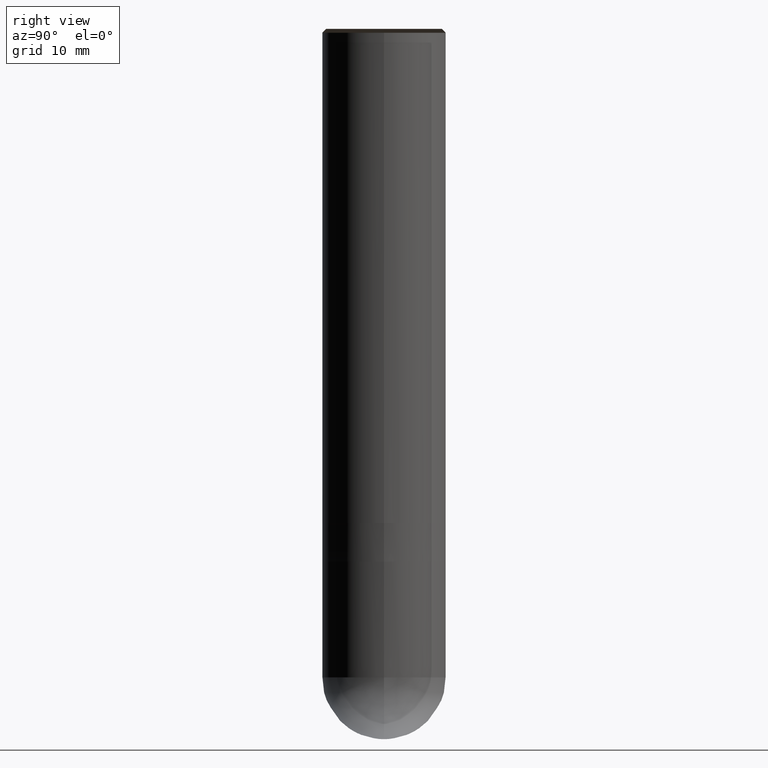
[diagram: clean part render]
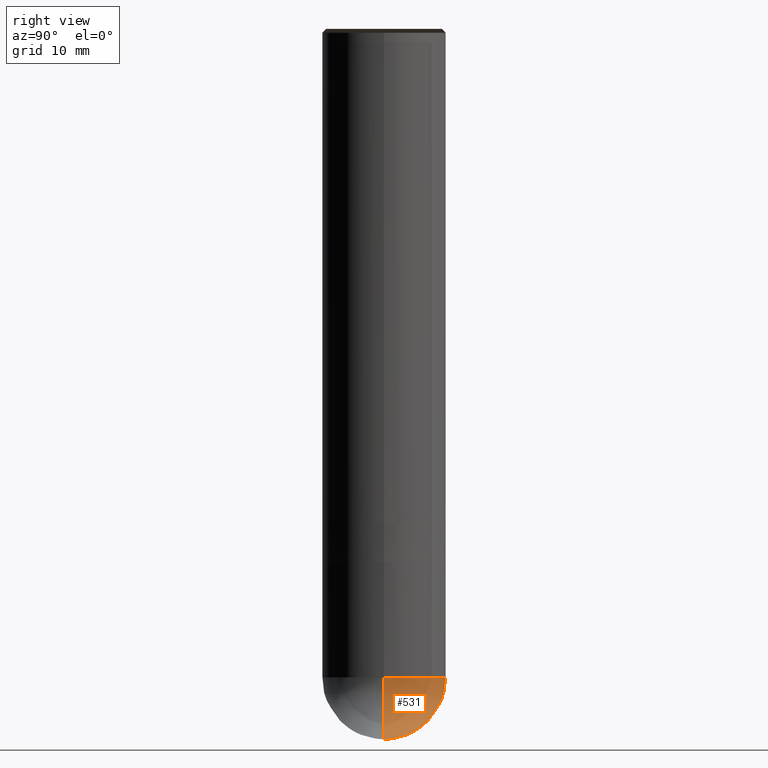
[diagram: same view with one face highlighted and labeled with its STEP entity id]
A machine part, right view. The second image highlights one B-rep face of the part: STEP entity #531.
In plain terms, the highlighted face is a freeform B-spline surface patch.
Its self-contained STEP definition (entity closure, byte-faithful):
#460=CARTESIAN_POINT('',(0.0,0.0,-28.0));
#461=CARTESIAN_POINT('',(8.0,0.0,-28.0));
#462=CARTESIAN_POINT('',(8.0,8.0,-28.0));
#463=CARTESIAN_POINT('',(0.0,8.0,-28.0));
#464=CARTESIAN_POINT('',(-8.0,8.0,-28.0));
#465=CARTESIAN_POINT('',(-8.0,0.0,-28.0));
#466=CARTESIAN_POINT('',(8.0,0.0,-20.0));
#467=CARTESIAN_POINT('',(8.0,8.0,-20.0));
#468=CARTESIAN_POINT('',(0.0,8.0,-20.0));
#469=CARTESIAN_POINT('',(-8.0,8.0,-20.0));
#470=CARTESIAN_POINT('',(-8.0,0.0,-20.0));
#516=(
BOUNDED_SURFACE()
B_SPLINE_SURFACE(2,2,(
(#460,#460,#460,#460,#460),
(#461,#462,#463,#464,#465),
(#466,#467,#468,#469,#470)
), .UNSPECIFIED.,.F.,.F.,.F.)
B_SPLINE_SURFACE_WITH_KNOTS((3,3),(3,2,3),(
0.0,1.0),(
0.0,0.5,1.0), .UNSPECIFIED.)
GEOMETRIC_REPRESENTATION_ITEM()
RATIONAL_B_SPLINE_SURFACE(((1.0,0.707106781187,1.0,0.707106781187,1.0),
(0.707106781187,0.5,0.707106781187,0.5,0.707106781187),
(1.0,0.707106781187,1.0,0.707106781187,1.0)
))
REPRESENTATION_ITEM('')
SURFACE()
);
#517=(
BOUNDED_CURVE()
B_SPLINE_CURVE(2,(#470,#465,#460),.UNSPECIFIED.,.F.,.F.)
B_SPLINE_CURVE_WITH_KNOTS((3,3),
(0.0,1.0),.UNSPECIFIED.)
CURVE()
GEOMETRIC_REPRESENTATION_ITEM()
RATIONAL_B_SPLINE_CURVE((1.0,0.707106781187,1.0))
REPRESENTATION_ITEM('')
);
#518=(
BOUNDED_CURVE()
B_SPLINE_CURVE(2,(#460,#461,#466),.UNSPECIFIED.,.F.,.F.)
B_SPLINE_CURVE_WITH_KNOTS((3,3),
(0.0,1.0),.UNSPECIFIED.)
CURVE()
GEOMETRIC_REPRESENTATION_ITEM()
RATIONAL_B_SPLINE_CURVE((1.0,0.707106781187,1.0))
REPRESENTATION_ITEM('')
);
#519=(
BOUNDED_CURVE()
B_SPLINE_CURVE(2,(#466,#467,#468,#469,#470),.UNSPECIFIED.,.F.,.F.)
B_SPLINE_CURVE_WITH_KNOTS((3,2,3),
(0.0,0.5,1.0),.UNSPECIFIED.)
CURVE()
GEOMETRIC_REPRESENTATION_ITEM()
RATIONAL_B_SPLINE_CURVE((1.0,0.707106781187,1.0,0.707106781187,1.0))
REPRESENTATION_ITEM('')
);
#520=VERTEX_POINT('',#460);
#521=VERTEX_POINT('',#466);
#522=VERTEX_POINT('',#470);
#523=EDGE_CURVE('',#522,#520,#517,.T.);
#524=EDGE_CURVE('',#520,#521,#518,.T.);
#525=EDGE_CURVE('',#521,#522,#519,.T.);
#526=ORIENTED_EDGE('',*,*,#523,.T.);
#527=ORIENTED_EDGE('',*,*,#524,.T.);
#528=ORIENTED_EDGE('',*,*,#525,.T.);
#529=EDGE_LOOP('',(#526,#527,#528));
#530=FACE_OUTER_BOUND('',#529,.T.);
#531=ADVANCED_FACE('',(#530),#516,.T.);